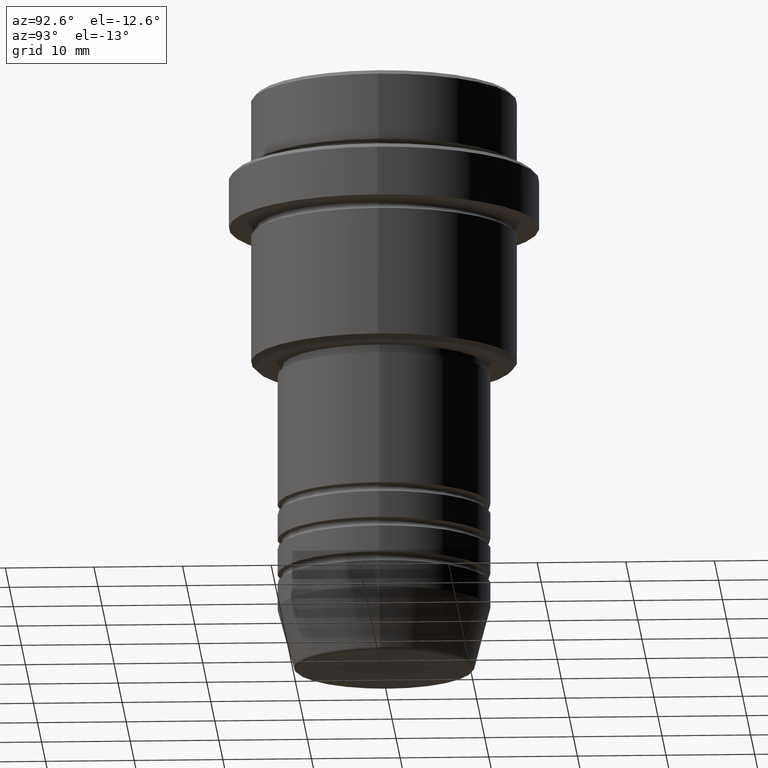
[diagram: clean part render]
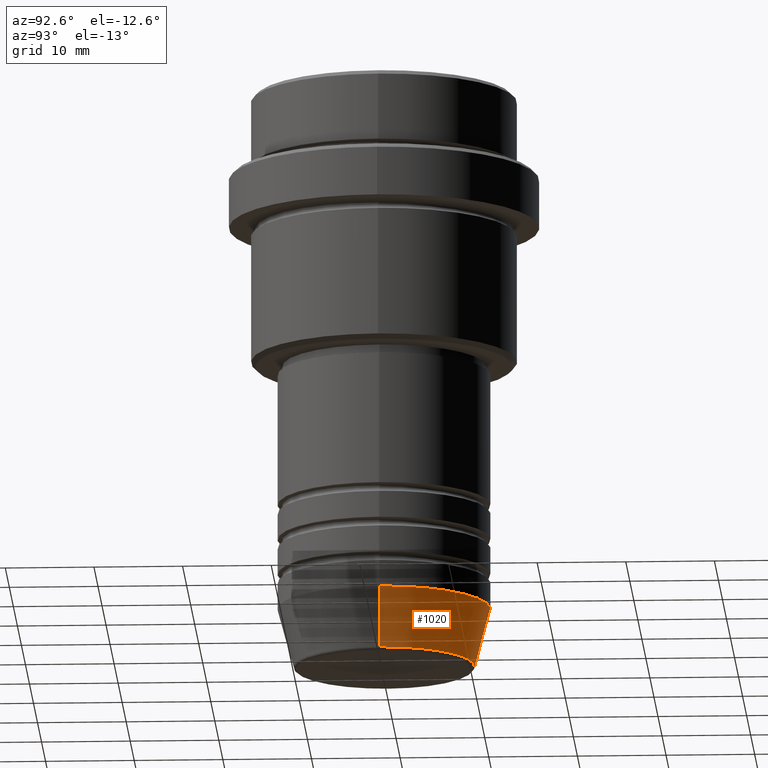
[diagram: same view with one face highlighted and labeled with its STEP entity id]
A machine part, auxiliary view. The second image highlights one B-rep face of the part: STEP entity #1020.
In plain terms, the highlighted conical surface has half-angle 15 deg.
Its self-contained STEP definition (entity closure, byte-faithful):
#9 = CARTESIAN_POINT ( 'NONE',  ( 10.22365507213719305, 0.000000000000000000, -65.62940952255127058 ) ) ;
#60 = VERTEX_POINT ( 'NONE', #621 ) ;
#61 = CARTESIAN_POINT ( 'NONE',  ( 0.000000000000000000, 0.000000000000000000, -59.00000000000000711 ) ) ;
#136 = VECTOR ( 'NONE', #1067, 1000.000000000000114 ) ;
#137 = AXIS2_PLACEMENT_3D ( 'NONE', #1024, #406, #820 ) ;
#222 = EDGE_CURVE ( 'NONE', #367, #680, #657, .T. ) ;
#328 = CARTESIAN_POINT ( 'NONE',  ( 12.00000000000000000, 0.000000000000000000, -59.00000000000000711 ) ) ;
#358 = CARTESIAN_POINT ( 'NONE',  ( -12.00000000000000000, 1.469576158976823947E-15, -59.00000000000000711 ) ) ;
#367 = VERTEX_POINT ( 'NONE', #9 ) ;
#402 = AXIS2_PLACEMENT_3D ( 'NONE', #549, #430, #662 ) ;
#406 = DIRECTION ( 'NONE',  ( -0.000000000000000000, -0.000000000000000000, 1.000000000000000000 ) ) ;
#430 = DIRECTION ( 'NONE',  ( -0.000000000000000000, -0.000000000000000000, 1.000000000000000000 ) ) ;
#475 = CARTESIAN_POINT ( 'NONE',  ( -12.00000000000000000, 1.469576158976823947E-15, -59.00000000000000711 ) ) ;
#515 = CONICAL_SURFACE ( 'NONE', #741, 12.00000000000000000, 0.2617993877991497964 ) ;
#530 = DIRECTION ( 'NONE',  ( -0.000000000000000000, -0.000000000000000000, 1.000000000000000000 ) ) ;
#549 = CARTESIAN_POINT ( 'NONE',  ( 0.000000000000000000, 0.000000000000000000, -65.62940952255127058 ) ) ;
#602 = EDGE_CURVE ( 'NONE', #367, #60, #1378, .T. ) ;
#608 = FACE_OUTER_BOUND ( 'NONE', #735, .T. ) ;
#621 = CARTESIAN_POINT ( 'NONE',  ( 12.00000000000000000, 0.000000000000000000, -59.00000000000000711 ) ) ;
#651 = DIRECTION ( 'NONE',  ( 1.000000000000000000, 0.000000000000000000, 0.000000000000000000 ) ) ;
#657 = CIRCLE ( 'NONE', #402, 10.22365507213719305 ) ;
#662 = DIRECTION ( 'NONE',  ( 1.000000000000000000, 0.000000000000000000, 0.000000000000000000 ) ) ;
#680 = VERTEX_POINT ( 'NONE', #1408 ) ;
#735 = EDGE_LOOP ( 'NONE', ( #1126, #890, #1041, #1142 ) ) ;
#741 = AXIS2_PLACEMENT_3D ( 'NONE', #61, #530, #651 ) ;
#820 = DIRECTION ( 'NONE',  ( 1.000000000000000000, 0.000000000000000000, 0.000000000000000000 ) ) ;
#835 = LINE ( 'NONE', #475, #1302 ) ;
#840 = VERTEX_POINT ( 'NONE', #358 ) ;
#890 = ORIENTED_EDGE ( 'NONE', *, *, #980, .T. ) ;
#945 = EDGE_CURVE ( 'NONE', #60, #840, #1114, .T. ) ;
#980 = EDGE_CURVE ( 'NONE', #680, #840, #835, .T. ) ;
#1020 = ADVANCED_FACE ( 'NONE', ( #608 ), #515, .T. ) ;
#1024 = CARTESIAN_POINT ( 'NONE',  ( 0.000000000000000000, 0.000000000000000000, -59.00000000000000711 ) ) ;
#1041 = ORIENTED_EDGE ( 'NONE', *, *, #945, .F. ) ;
#1067 = DIRECTION ( 'NONE',  ( 0.2588190451025210725, 0.000000000000000000, 0.9659258262890680902 ) ) ;
#1114 = CIRCLE ( 'NONE', #137, 12.00000000000000000 ) ;
#1126 = ORIENTED_EDGE ( 'NONE', *, *, #222, .T. ) ;
#1142 = ORIENTED_EDGE ( 'NONE', *, *, #602, .F. ) ;
#1143 = DIRECTION ( 'NONE',  ( -0.2588190451025210725, 3.169619151431769255E-17, 0.9659258262890680902 ) ) ;
#1302 = VECTOR ( 'NONE', #1143, 1000.000000000000114 ) ;
#1378 = LINE ( 'NONE', #328, #136 ) ;
#1408 = CARTESIAN_POINT ( 'NONE',  ( -10.22365507213719305, 1.360806402472382744E-15, -65.62940952255127058 ) ) ;